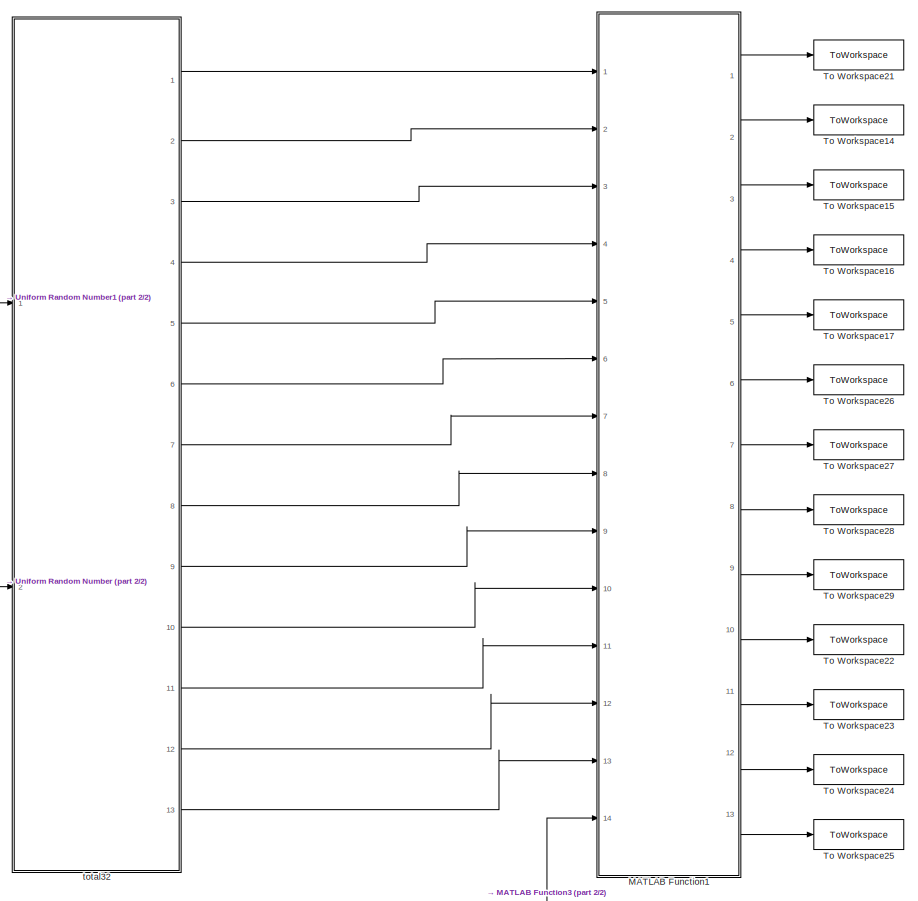
[diagram: root canvas - part 1/2, central region]
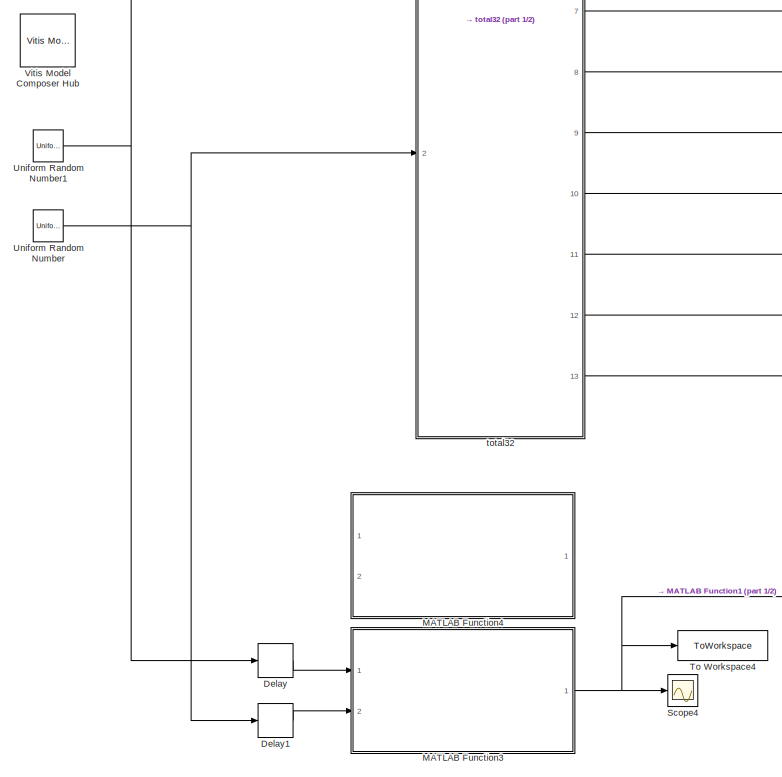
[diagram: root canvas - part 2/2, bottom left region]
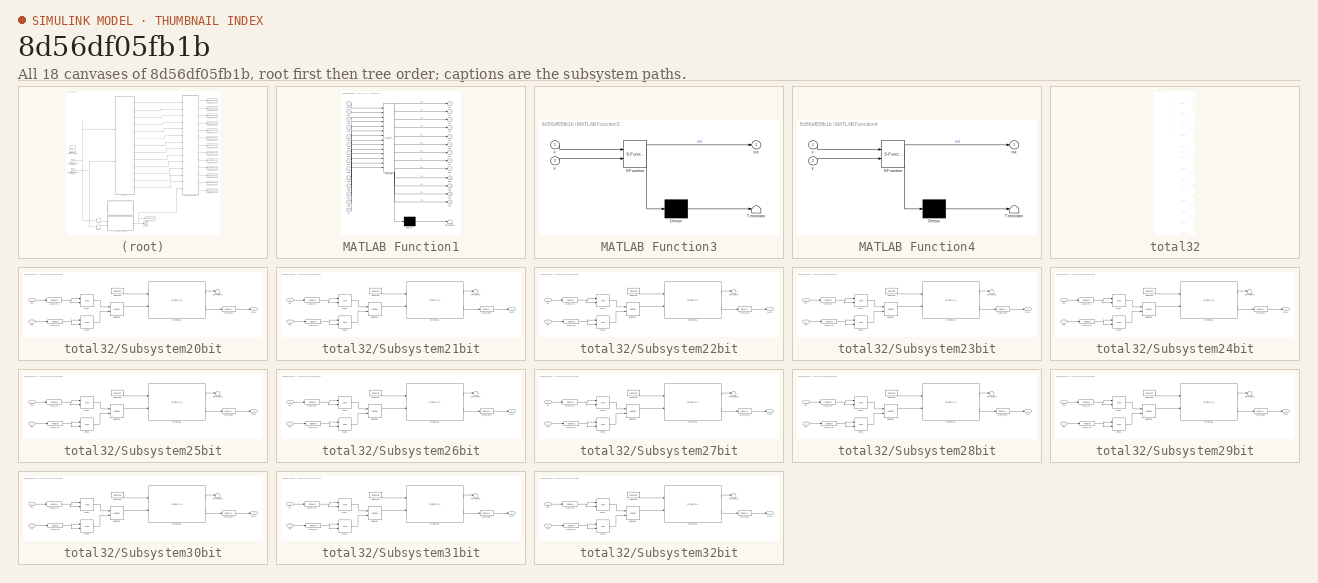
[diagram: thumbnail index - all 18 canvases of the model, root first then tree order]
MODEL slx_8d56df05fb1b
KIND model
CONFIG AbsTol = auto
CONFIG EnableMultiTasking = off
CONFIG FixedStep = auto
CONFIG MaxStep = auto
CONFIG MinStep = auto
CONFIG RelTol = 1e-3
CONFIG SampleTimeConstraint = Unconstrained
CONFIG SolverName = VariableStepAuto
CONFIG StartTime = 0.0
CONFIG StopTime = 100
BLOCK [Delay] Delay
  DelayLength = 1
  InputPortMap = u0
  Ports = [1, 1]
BLOCK [Delay] Delay1
  DelayLength = 1
  InputPortMap = u0
  Ports = [1, 1]
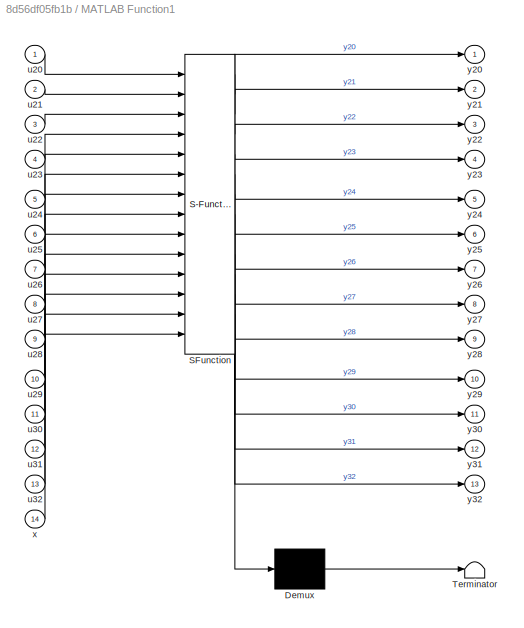
BLOCK [SubSystem] MATLAB Function1
  ErrorFcn = Stateflow.Translate.translate
  PermitHierarchicalResolution = ExplicitOnly
  Ports = [14, 13]
  RequestExecContextInheritance = off
  SFBlockType = MATLAB Function
  TreatAsAtomicUnit = on
BLOCK [Demux] MATLAB Function1/ Demux 
  Outputs = 1
  Ports = [1, 1]
BLOCK [S-Function] MATLAB Function1/ SFunction 
  EnableBusSupport = on
  FunctionName = sf_sfun
  PortCounts = [14 14]
  Ports = [14, 14]
  SFcnIsStateOwnerBlock = off
  SFunctionDeploymentMode = off
  Tag = Stateflow S-Function 1
BLOCK [Terminator] MATLAB Function1/ Terminator 
BLOCK [Inport] MATLAB Function1/u20
BLOCK [Inport] MATLAB Function1/u21
  Port = 2
BLOCK [Inport] MATLAB Function1/u22
  Port = 3
BLOCK [Inport] MATLAB Function1/u23
  Port = 4
BLOCK [Inport] MATLAB Function1/u24
  Port = 5
BLOCK [Inport] MATLAB Function1/u25
  Port = 6
BLOCK [Inport] MATLAB Function1/u26
  Port = 7
BLOCK [Inport] MATLAB Function1/u27
  Port = 8
BLOCK [Inport] MATLAB Function1/u28
  Port = 9
BLOCK [Inport] MATLAB Function1/u29
  Port = 10
BLOCK [Inport] MATLAB Function1/u30
  Port = 11
BLOCK [Inport] MATLAB Function1/u31
  Port = 12
BLOCK [Inport] MATLAB Function1/u32
  Port = 13
BLOCK [Inport] MATLAB Function1/x
  Port = 14
BLOCK [Outport] MATLAB Function1/y20
BLOCK [Outport] MATLAB Function1/y21
  Port = 2
BLOCK [Outport] MATLAB Function1/y22
  Port = 3
BLOCK [Outport] MATLAB Function1/y23
  Port = 4
BLOCK [Outport] MATLAB Function1/y24
  Port = 5
BLOCK [Outport] MATLAB Function1/y25
  Port = 6
BLOCK [Outport] MATLAB Function1/y26
  Port = 7
BLOCK [Outport] MATLAB Function1/y27
  Port = 8
BLOCK [Outport] MATLAB Function1/y28
  Port = 9
BLOCK [Outport] MATLAB Function1/y29
  Port = 10
BLOCK [Outport] MATLAB Function1/y30
  Port = 11
BLOCK [Outport] MATLAB Function1/y31
  Port = 12
BLOCK [Outport] MATLAB Function1/y32
  Port = 13
BLOCK [SubSystem] MATLAB Function3
  ErrorFcn = Stateflow.Translate.translate
  PermitHierarchicalResolution = ExplicitOnly
  Ports = [2, 1]
  RequestExecContextInheritance = off
  SFBlockType = MATLAB Function
  TreatAsAtomicUnit = on
BLOCK [Demux] MATLAB Function3/ Demux 
  Outputs = 1
  Ports = [1, 1]
BLOCK [S-Function] MATLAB Function3/ SFunction 
  EnableBusSupport = on
  FunctionName = sf_sfun
  PortCounts = [2 2]
  Ports = [2, 2]
  SFcnIsStateOwnerBlock = off
  SFunctionDeploymentMode = off
  Tag = Stateflow S-Function 2
BLOCK [Terminator] MATLAB Function3/ Terminator 
BLOCK [Outport] MATLAB Function3/out
BLOCK [Inport] MATLAB Function3/x
BLOCK [Inport] MATLAB Function3/y
  Port = 2
BLOCK [SubSystem] MATLAB Function4
  Commented = on
  ErrorFcn = Stateflow.Translate.translate
  PermitHierarchicalResolution = ExplicitOnly
  Ports = [2, 1]
  RequestExecContextInheritance = off
  SFBlockType = MATLAB Function
  TreatAsAtomicUnit = on
BLOCK [Demux] MATLAB Function4/ Demux 
  Outputs = 1
  Ports = [1, 1]
BLOCK [S-Function] MATLAB Function4/ SFunction 
  EnableBusSupport = on
  FunctionName = sf_sfun
  PortCounts = [2 2]
  Ports = [2, 2]
  SFcnIsStateOwnerBlock = off
  SFunctionDeploymentMode = off
  Tag = Stateflow S-Function 4
BLOCK [Terminator] MATLAB Function4/ Terminator 
BLOCK [Outport] MATLAB Function4/out
BLOCK [Inport] MATLAB Function4/x
BLOCK [Inport] MATLAB Function4/y
  Port = 2
BLOCK [Scope] Scope4
  Floating = off
  NumInputPorts = 1
  Ports = [1]
  ScopeSpecificationString = Simulink.scopes.TimeScopeBlockCfg('CurrentConfiguration', extmgr.ConfigurationSet(extmgr.Configuration('Core','General UI',true),extmgr.Configuration('Core','Source UI',true),extmgr.Configuration('Sources','WiredSimulink',true,'DataLoggingVariableName','ScopeData3'),extmgr.Configuration('Visuals','Time Domain',true,'SerializedDisplays',{struct('MinYLimReal','-0.15485','MaxYLimReal','1.39364','YLab...<+1447ch>
BLOCK [ToWorkspace] To Workspace14
  FixptAsFi = on
  MaxDataPoints = inf
  Ports = [1]
  SampleTime = -1
  SaveFormat = Structure With Time
  VariableName = out21
BLOCK [ToWorkspace] To Workspace15
  FixptAsFi = on
  MaxDataPoints = inf
  Ports = [1]
  SampleTime = -1
  SaveFormat = Structure With Time
  VariableName = out22
BLOCK [ToWorkspace] To Workspace16
  FixptAsFi = on
  MaxDataPoints = inf
  Ports = [1]
  SampleTime = -1
  SaveFormat = Structure With Time
  VariableName = out23
BLOCK [ToWorkspace] To Workspace17
  FixptAsFi = on
  MaxDataPoints = inf
  Ports = [1]
  SampleTime = -1
  SaveFormat = Structure With Time
  VariableName = out24
BLOCK [ToWorkspace] To Workspace21
  FixptAsFi = on
  MaxDataPoints = inf
  Ports = [1]
  SampleTime = -1
  SaveFormat = Structure With Time
  VariableName = out20
BLOCK [ToWorkspace] To Workspace22
  FixptAsFi = on
  MaxDataPoints = inf
  Ports = [1]
  SampleTime = -1
  SaveFormat = Structure With Time
  VariableName = out29
BLOCK [ToWorkspace] To Workspace23
  FixptAsFi = on
  MaxDataPoints = inf
  Ports = [1]
  SampleTime = -1
  SaveFormat = Structure With Time
  VariableName = out30
BLOCK [ToWorkspace] To Workspace24
  FixptAsFi = on
  MaxDataPoints = inf
  Ports = [1]
  SampleTime = -1
  SaveFormat = Structure With Time
  VariableName = out31
BLOCK [ToWorkspace] To Workspace25
  FixptAsFi = on
  MaxDataPoints = inf
  Ports = [1]
  SampleTime = -1
  SaveFormat = Structure With Time
  VariableName = out32
BLOCK [ToWorkspace] To Workspace26
  FixptAsFi = on
  MaxDataPoints = inf
  Ports = [1]
  SampleTime = -1
  SaveFormat = Structure With Time
  VariableName = out25
BLOCK [ToWorkspace] To Workspace27
  FixptAsFi = on
  MaxDataPoints = inf
  Ports = [1]
  SampleTime = -1
  SaveFormat = Structure With Time
  VariableName = out26
BLOCK [ToWorkspace] To Workspace28
  FixptAsFi = on
  MaxDataPoints = inf
  Ports = [1]
  SampleTime = -1
  SaveFormat = Structure With Time
  VariableName = out27
BLOCK [ToWorkspace] To Workspace29
  FixptAsFi = on
  MaxDataPoints = inf
  Ports = [1]
  SampleTime = -1
  SaveFormat = Structure With Time
  VariableName = out28
BLOCK [ToWorkspace] To Workspace4
  FixptAsFi = on
  MaxDataPoints = inf
  Ports = [1]
  SampleTime = -1
  SaveFormat = Structure With Time
  VariableName = outGOLD
BLOCK [UniformRandomNumber] Uniform Random Number
  Maximum = 0.9
  Minimum = -0.9
  SampleTime = 1
BLOCK [UniformRandomNumber] Uniform Random Number1
  Maximum = 0.9
  Minimum = -0.9
  SampleTime = 1
  Seed = 1
BLOCK [Reference] Vitis Model Composer Hub  REF=vmcUtilities/Vitis Model Composer Hub
  Ports = []
  SourceBlock = vmcUtilities/Vitis Model Composer Hub
  SourceType = Implementation
  Tag = genX
  UserDataPersistent = on
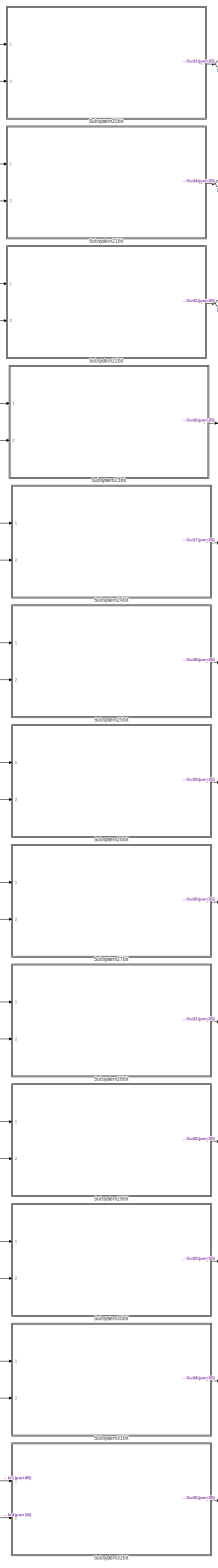
[diagram: total32 - part 1/5, right side, full height]
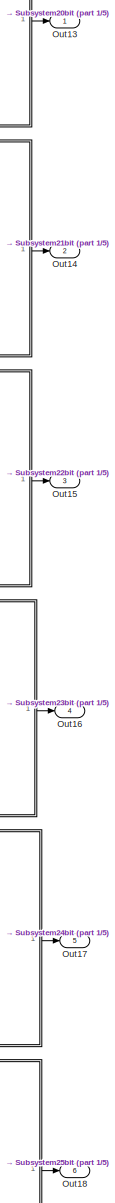
[diagram: total32 - part 2/5, top right region]
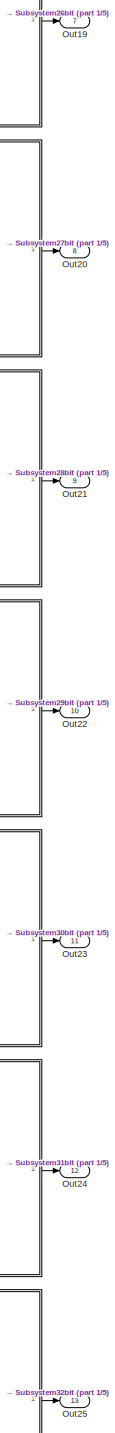
[diagram: total32 - part 3/5, bottom right region]
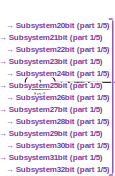
[diagram: total32 - part 4/5, bottom left region]
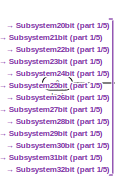
[diagram: total32 - part 5/5, bottom left region]
BLOCK [SubSystem] total32
  Ports = [2, 13]
  RequestExecContextInheritance = off
BLOCK [Inport] total32/In1
BLOCK [Inport] total32/In4
  Port = 2
BLOCK [Outport] total32/Out13
BLOCK [Outport] total32/Out14
  Port = 2
BLOCK [Outport] total32/Out15
  Port = 3
BLOCK [Outport] total32/Out16
  Port = 4
BLOCK [Outport] total32/Out17
  Port = 5
BLOCK [Outport] total32/Out18
  Port = 6
BLOCK [Outport] total32/Out19
  Port = 7
BLOCK [Outport] total32/Out20
  Port = 8
BLOCK [Outport] total32/Out21
  Port = 9
BLOCK [Outport] total32/Out22
  Port = 10
BLOCK [Outport] total32/Out23
  Port = 11
BLOCK [Outport] total32/Out24
  Port = 12
BLOCK [Outport] total32/Out25
  Port = 13
BLOCK [SubSystem] total32/Subsystem20bit
  Ports = [2, 1]
  RequestExecContextInheritance = off
BLOCK [Reference] total32/Subsystem20bit/CORDIC16  REF=hdlDSPIP/CORDIC 6.0 
  Ports = [2, 2]
  SourceBlock = hdlDSPIP/CORDIC 6.0
  SourceType = CORDIC 6.0 Block
BLOCK [Reference] total32/Subsystem20bit/Constant  REF=hdlBasic/Constant
  Ports = [0, 1]
  SourceBlock = hdlBasic/Constant
  SourceType = Constant Block Block
BLOCK [Reference] total32/Subsystem20bit/Gate_In1  REF=hdlBasic/Gateway In
  Ports = [1, 1]
  SourceBlock = hdlBasic/Gateway In
  SourceType = Gateway In Block
BLOCK [Reference] total32/Subsystem20bit/Gate_In2  REF=hdlBasic/Gateway In
  Ports = [1, 1]
  SourceBlock = hdlBasic/Gateway In
  SourceType = Gateway In Block
BLOCK [Reference] total32/Subsystem20bit/Gate_out1  REF=hdlBasic/Gateway Out
  Ports = [1, 1]
  SourceBlock = hdlBasic/Gateway Out
  SourceType = Gateway Out Block
BLOCK [Inport] total32/Subsystem20bit/In1
BLOCK [Inport] total32/Subsystem20bit/In2
  Port = 2
BLOCK [Reference] total32/Subsystem20bit/Mult1  REF=hdlBasic/Mult
  Ports = [2, 1]
  SourceBlock = hdlBasic/Mult
  SourceType = Multiplier Block
BLOCK [Reference] total32/Subsystem20bit/Mult2  REF=hdlBasic/Mult
  Ports = [2, 1]
  SourceBlock = hdlBasic/Mult
  SourceType = Multiplier Block
BLOCK [Outport] total32/Subsystem20bit/Out1
BLOCK [Terminator] total32/Subsystem20bit/Terminator
BLOCK [Reference] total32/Subsystem20bit/addsub1  REF=hdlBasic/AddSub
  Ports = [2, 1]
  SourceBlock = hdlBasic/AddSub
  SourceType = Adder/Subtracter Block
BLOCK [SubSystem] total32/Subsystem21bit
  Ports = [2, 1]
  RequestExecContextInheritance = off
BLOCK [Reference] total32/Subsystem21bit/CORDIC16  REF=hdlDSPIP/CORDIC 6.0 
  Ports = [2, 2]
  SourceBlock = hdlDSPIP/CORDIC 6.0
  SourceType = CORDIC 6.0 Block
BLOCK [Reference] total32/Subsystem21bit/Constant  REF=hdlBasic/Constant
  Ports = [0, 1]
  SourceBlock = hdlBasic/Constant
  SourceType = Constant Block Block
BLOCK [Reference] total32/Subsystem21bit/Gate_In1  REF=hdlBasic/Gateway In
  Ports = [1, 1]
  SourceBlock = hdlBasic/Gateway In
  SourceType = Gateway In Block
BLOCK [Reference] total32/Subsystem21bit/Gate_In2  REF=hdlBasic/Gateway In
  Ports = [1, 1]
  SourceBlock = hdlBasic/Gateway In
  SourceType = Gateway In Block
BLOCK [Reference] total32/Subsystem21bit/Gate_out1  REF=hdlBasic/Gateway Out
  Ports = [1, 1]
  SourceBlock = hdlBasic/Gateway Out
  SourceType = Gateway Out Block
BLOCK [Inport] total32/Subsystem21bit/In1
BLOCK [Inport] total32/Subsystem21bit/In2
  Port = 2
BLOCK [Reference] total32/Subsystem21bit/Mult1  REF=hdlBasic/Mult
  Ports = [2, 1]
  SourceBlock = hdlBasic/Mult
  SourceType = Multiplier Block
BLOCK [Reference] total32/Subsystem21bit/Mult2  REF=hdlBasic/Mult
  Ports = [2, 1]
  SourceBlock = hdlBasic/Mult
  SourceType = Multiplier Block
BLOCK [Outport] total32/Subsystem21bit/Out1
BLOCK [Terminator] total32/Subsystem21bit/Terminator
BLOCK [Reference] total32/Subsystem21bit/addsub1  REF=hdlBasic/AddSub
  Ports = [2, 1]
  SourceBlock = hdlBasic/AddSub
  SourceType = Adder/Subtracter Block
BLOCK [SubSystem] total32/Subsystem22bit
  Ports = [2, 1]
  RequestExecContextInheritance = off
BLOCK [Reference] total32/Subsystem22bit/CORDIC16  REF=hdlDSPIP/CORDIC 6.0 
  Ports = [2, 2]
  SourceBlock = hdlDSPIP/CORDIC 6.0
  SourceType = CORDIC 6.0 Block
BLOCK [Reference] total32/Subsystem22bit/Constant  REF=hdlBasic/Constant
  Ports = [0, 1]
  SourceBlock = hdlBasic/Constant
  SourceType = Constant Block Block
BLOCK [Reference] total32/Subsystem22bit/Gate_In1  REF=hdlBasic/Gateway In
  Ports = [1, 1]
  SourceBlock = hdlBasic/Gateway In
  SourceType = Gateway In Block
BLOCK [Reference] total32/Subsystem22bit/Gate_In2  REF=hdlBasic/Gateway In
  Ports = [1, 1]
  SourceBlock = hdlBasic/Gateway In
  SourceType = Gateway In Block
BLOCK [Reference] total32/Subsystem22bit/Gate_out1  REF=hdlBasic/Gateway Out
  Ports = [1, 1]
  SourceBlock = hdlBasic/Gateway Out
  SourceType = Gateway Out Block
BLOCK [Inport] total32/Subsystem22bit/In1
BLOCK [Inport] total32/Subsystem22bit/In2
  Port = 2
BLOCK [Reference] total32/Subsystem22bit/Mult1  REF=hdlBasic/Mult
  Ports = [2, 1]
  SourceBlock = hdlBasic/Mult
  SourceType = Multiplier Block
BLOCK [Reference] total32/Subsystem22bit/Mult2  REF=hdlBasic/Mult
  Ports = [2, 1]
  SourceBlock = hdlBasic/Mult
  SourceType = Multiplier Block
BLOCK [Outport] total32/Subsystem22bit/Out1
BLOCK [Terminator] total32/Subsystem22bit/Terminator
BLOCK [Reference] total32/Subsystem22bit/addsub1  REF=hdlBasic/AddSub
  Ports = [2, 1]
  SourceBlock = hdlBasic/AddSub
  SourceType = Adder/Subtracter Block
BLOCK [SubSystem] total32/Subsystem23bit
  Ports = [2, 1]
  RequestExecContextInheritance = off
BLOCK [Reference] total32/Subsystem23bit/CORDIC16  REF=hdlDSPIP/CORDIC 6.0 
  Ports = [2, 2]
  SourceBlock = hdlDSPIP/CORDIC 6.0
  SourceType = CORDIC 6.0 Block
BLOCK [Reference] total32/Subsystem23bit/Constant  REF=hdlBasic/Constant
  Ports = [0, 1]
  SourceBlock = hdlBasic/Constant
  SourceType = Constant Block Block
BLOCK [Reference] total32/Subsystem23bit/Gate_In1  REF=hdlBasic/Gateway In
  Ports = [1, 1]
  SourceBlock = hdlBasic/Gateway In
  SourceType = Gateway In Block
BLOCK [Reference] total32/Subsystem23bit/Gate_In2  REF=hdlBasic/Gateway In
  Ports = [1, 1]
  SourceBlock = hdlBasic/Gateway In
  SourceType = Gateway In Block
BLOCK [Reference] total32/Subsystem23bit/Gate_out1  REF=hdlBasic/Gateway Out
  Ports = [1, 1]
  SourceBlock = hdlBasic/Gateway Out
  SourceType = Gateway Out Block
BLOCK [Inport] total32/Subsystem23bit/In1
BLOCK [Inport] total32/Subsystem23bit/In2
  Port = 2
BLOCK [Reference] total32/Subsystem23bit/Mult1  REF=hdlBasic/Mult
  Ports = [2, 1]
  SourceBlock = hdlBasic/Mult
  SourceType = Multiplier Block
BLOCK [Reference] total32/Subsystem23bit/Mult2  REF=hdlBasic/Mult
  Ports = [2, 1]
  SourceBlock = hdlBasic/Mult
  SourceType = Multiplier Block
BLOCK [Outport] total32/Subsystem23bit/Out1
BLOCK [Terminator] total32/Subsystem23bit/Terminator
BLOCK [Reference] total32/Subsystem23bit/addsub1  REF=hdlBasic/AddSub
  Ports = [2, 1]
  SourceBlock = hdlBasic/AddSub
  SourceType = Adder/Subtracter Block
BLOCK [SubSystem] total32/Subsystem24bit
  Ports = [2, 1]
  RequestExecContextInheritance = off
BLOCK [Reference] total32/Subsystem24bit/CORDIC16  REF=hdlDSPIP/CORDIC 6.0 
  Ports = [2, 2]
  SourceBlock = hdlDSPIP/CORDIC 6.0
  SourceType = CORDIC 6.0 Block
BLOCK [Reference] total32/Subsystem24bit/Constant  REF=hdlBasic/Constant
  Ports = [0, 1]
  SourceBlock = hdlBasic/Constant
  SourceType = Constant Block Block
BLOCK [Reference] total32/Subsystem24bit/Gate_In1  REF=hdlBasic/Gateway In
  Ports = [1, 1]
  SourceBlock = hdlBasic/Gateway In
  SourceType = Gateway In Block
BLOCK [Reference] total32/Subsystem24bit/Gate_In2  REF=hdlBasic/Gateway In
  Ports = [1, 1]
  SourceBlock = hdlBasic/Gateway In
  SourceType = Gateway In Block
BLOCK [Reference] total32/Subsystem24bit/Gate_out1  REF=hdlBasic/Gateway Out
  Ports = [1, 1]
  SourceBlock = hdlBasic/Gateway Out
  SourceType = Gateway Out Block
BLOCK [Inport] total32/Subsystem24bit/In1
BLOCK [Inport] total32/Subsystem24bit/In2
  Port = 2
BLOCK [Reference] total32/Subsystem24bit/Mult1  REF=hdlBasic/Mult
  Ports = [2, 1]
  SourceBlock = hdlBasic/Mult
  SourceType = Multiplier Block
BLOCK [Reference] total32/Subsystem24bit/Mult2  REF=hdlBasic/Mult
  Ports = [2, 1]
  SourceBlock = hdlBasic/Mult
  SourceType = Multiplier Block
BLOCK [Outport] total32/Subsystem24bit/Out1
BLOCK [Terminator] total32/Subsystem24bit/Terminator
BLOCK [Reference] total32/Subsystem24bit/addsub1  REF=hdlBasic/AddSub
  Ports = [2, 1]
  SourceBlock = hdlBasic/AddSub
  SourceType = Adder/Subtracter Block
BLOCK [SubSystem] total32/Subsystem25bit
  Ports = [2, 1]
  RequestExecContextInheritance = off
BLOCK [Reference] total32/Subsystem25bit/CORDIC16  REF=hdlDSPIP/CORDIC 6.0 
  Ports = [2, 2]
  SourceBlock = hdlDSPIP/CORDIC 6.0
  SourceType = CORDIC 6.0 Block
BLOCK [Reference] total32/Subsystem25bit/Constant  REF=hdlBasic/Constant
  Ports = [0, 1]
  SourceBlock = hdlBasic/Constant
  SourceType = Constant Block Block
BLOCK [Reference] total32/Subsystem25bit/Gate_In1  REF=hdlBasic/Gateway In
  Ports = [1, 1]
  SourceBlock = hdlBasic/Gateway In
  SourceType = Gateway In Block
BLOCK [Reference] total32/Subsystem25bit/Gate_In2  REF=hdlBasic/Gateway In
  Ports = [1, 1]
  SourceBlock = hdlBasic/Gateway In
  SourceType = Gateway In Block
BLOCK [Reference] total32/Subsystem25bit/Gate_out1  REF=hdlBasic/Gateway Out
  Ports = [1, 1]
  SourceBlock = hdlBasic/Gateway Out
  SourceType = Gateway Out Block
BLOCK [Inport] total32/Subsystem25bit/In1
BLOCK [Inport] total32/Subsystem25bit/In2
  Port = 2
BLOCK [Reference] total32/Subsystem25bit/Mult1  REF=hdlBasic/Mult
  Ports = [2, 1]
  SourceBlock = hdlBasic/Mult
  SourceType = Multiplier Block
BLOCK [Reference] total32/Subsystem25bit/Mult2  REF=hdlBasic/Mult
  Ports = [2, 1]
  SourceBlock = hdlBasic/Mult
  SourceType = Multiplier Block
BLOCK [Outport] total32/Subsystem25bit/Out1
BLOCK [Terminator] total32/Subsystem25bit/Terminator
BLOCK [Reference] total32/Subsystem25bit/addsub1  REF=hdlBasic/AddSub
  Ports = [2, 1]
  SourceBlock = hdlBasic/AddSub
  SourceType = Adder/Subtracter Block
BLOCK [SubSystem] total32/Subsystem26bit
  Ports = [2, 1]
  RequestExecContextInheritance = off
BLOCK [Reference] total32/Subsystem26bit/CORDIC16  REF=hdlDSPIP/CORDIC 6.0 
  Ports = [2, 2]
  SourceBlock = hdlDSPIP/CORDIC 6.0
  SourceType = CORDIC 6.0 Block
BLOCK [Reference] total32/Subsystem26bit/Constant  REF=hdlBasic/Constant
  Ports = [0, 1]
  SourceBlock = hdlBasic/Constant
  SourceType = Constant Block Block
BLOCK [Reference] total32/Subsystem26bit/Gate_In1  REF=hdlBasic/Gateway In
  Ports = [1, 1]
  SourceBlock = hdlBasic/Gateway In
  SourceType = Gateway In Block
BLOCK [Reference] total32/Subsystem26bit/Gate_In2  REF=hdlBasic/Gateway In
  Ports = [1, 1]
  SourceBlock = hdlBasic/Gateway In
  SourceType = Gateway In Block
BLOCK [Reference] total32/Subsystem26bit/Gate_out1  REF=hdlBasic/Gateway Out
  Ports = [1, 1]
  SourceBlock = hdlBasic/Gateway Out
  SourceType = Gateway Out Block
BLOCK [Inport] total32/Subsystem26bit/In1
BLOCK [Inport] total32/Subsystem26bit/In2
  Port = 2
BLOCK [Reference] total32/Subsystem26bit/Mult1  REF=hdlBasic/Mult
  Ports = [2, 1]
  SourceBlock = hdlBasic/Mult
  SourceType = Multiplier Block
BLOCK [Reference] total32/Subsystem26bit/Mult2  REF=hdlBasic/Mult
  Ports = [2, 1]
  SourceBlock = hdlBasic/Mult
  SourceType = Multiplier Block
BLOCK [Outport] total32/Subsystem26bit/Out1
BLOCK [Terminator] total32/Subsystem26bit/Terminator
BLOCK [Reference] total32/Subsystem26bit/addsub1  REF=hdlBasic/AddSub
  Ports = [2, 1]
  SourceBlock = hdlBasic/AddSub
  SourceType = Adder/Subtracter Block
BLOCK [SubSystem] total32/Subsystem27bit
  Ports = [2, 1]
  RequestExecContextInheritance = off
BLOCK [Reference] total32/Subsystem27bit/CORDIC16  REF=hdlDSPIP/CORDIC 6.0 
  Ports = [2, 2]
  SourceBlock = hdlDSPIP/CORDIC 6.0
  SourceType = CORDIC 6.0 Block
BLOCK [Reference] total32/Subsystem27bit/Constant  REF=hdlBasic/Constant
  Ports = [0, 1]
  SourceBlock = hdlBasic/Constant
  SourceType = Constant Block Block
BLOCK [Reference] total32/Subsystem27bit/Gate_In1  REF=hdlBasic/Gateway In
  Ports = [1, 1]
  SourceBlock = hdlBasic/Gateway In
  SourceType = Gateway In Block
BLOCK [Reference] total32/Subsystem27bit/Gate_In2  REF=hdlBasic/Gateway In
  Ports = [1, 1]
  SourceBlock = hdlBasic/Gateway In
  SourceType = Gateway In Block
BLOCK [Reference] total32/Subsystem27bit/Gate_out1  REF=hdlBasic/Gateway Out
  Ports = [1, 1]
  SourceBlock = hdlBasic/Gateway Out
  SourceType = Gateway Out Block
BLOCK [Inport] total32/Subsystem27bit/In1
BLOCK [Inport] total32/Subsystem27bit/In2
  Port = 2
BLOCK [Reference] total32/Subsystem27bit/Mult1  REF=hdlBasic/Mult
  Ports = [2, 1]
  SourceBlock = hdlBasic/Mult
  SourceType = Multiplier Block
BLOCK [Reference] total32/Subsystem27bit/Mult2  REF=hdlBasic/Mult
  Ports = [2, 1]
  SourceBlock = hdlBasic/Mult
  SourceType = Multiplier Block
BLOCK [Outport] total32/Subsystem27bit/Out1
BLOCK [Terminator] total32/Subsystem27bit/Terminator
BLOCK [Reference] total32/Subsystem27bit/addsub1  REF=hdlBasic/AddSub
  Ports = [2, 1]
  SourceBlock = hdlBasic/AddSub
  SourceType = Adder/Subtracter Block
BLOCK [SubSystem] total32/Subsystem28bit
  Ports = [2, 1]
  RequestExecContextInheritance = off
BLOCK [Reference] total32/Subsystem28bit/CORDIC16  REF=hdlDSPIP/CORDIC 6.0 
  Ports = [2, 2]
  SourceBlock = hdlDSPIP/CORDIC 6.0
  SourceType = CORDIC 6.0 Block
BLOCK [Reference] total32/Subsystem28bit/Constant  REF=hdlBasic/Constant
  Ports = [0, 1]
  SourceBlock = hdlBasic/Constant
  SourceType = Constant Block Block
BLOCK [Reference] total32/Subsystem28bit/Gate_In1  REF=hdlBasic/Gateway In
  Ports = [1, 1]
  SourceBlock = hdlBasic/Gateway In
  SourceType = Gateway In Block
BLOCK [Reference] total32/Subsystem28bit/Gate_In2  REF=hdlBasic/Gateway In
  Ports = [1, 1]
  SourceBlock = hdlBasic/Gateway In
  SourceType = Gateway In Block
BLOCK [Reference] total32/Subsystem28bit/Gate_out1  REF=hdlBasic/Gateway Out
  Ports = [1, 1]
  SourceBlock = hdlBasic/Gateway Out
  SourceType = Gateway Out Block
BLOCK [Inport] total32/Subsystem28bit/In1
BLOCK [Inport] total32/Subsystem28bit/In2
  Port = 2
BLOCK [Reference] total32/Subsystem28bit/Mult1  REF=hdlBasic/Mult
  Ports = [2, 1]
  SourceBlock = hdlBasic/Mult
  SourceType = Multiplier Block
BLOCK [Reference] total32/Subsystem28bit/Mult2  REF=hdlBasic/Mult
  Ports = [2, 1]
  SourceBlock = hdlBasic/Mult
  SourceType = Multiplier Block
BLOCK [Outport] total32/Subsystem28bit/Out1
BLOCK [Terminator] total32/Subsystem28bit/Terminator
BLOCK [Reference] total32/Subsystem28bit/addsub1  REF=hdlBasic/AddSub
  Ports = [2, 1]
  SourceBlock = hdlBasic/AddSub
  SourceType = Adder/Subtracter Block
BLOCK [SubSystem] total32/Subsystem29bit
  Ports = [2, 1]
  RequestExecContextInheritance = off
BLOCK [Reference] total32/Subsystem29bit/CORDIC16  REF=hdlDSPIP/CORDIC 6.0 
  Ports = [2, 2]
  SourceBlock = hdlDSPIP/CORDIC 6.0
  SourceType = CORDIC 6.0 Block
BLOCK [Reference] total32/Subsystem29bit/Constant  REF=hdlBasic/Constant
  Ports = [0, 1]
  SourceBlock = hdlBasic/Constant
  SourceType = Constant Block Block
BLOCK [Reference] total32/Subsystem29bit/Gate_In1  REF=hdlBasic/Gateway In
  Ports = [1, 1]
  SourceBlock = hdlBasic/Gateway In
  SourceType = Gateway In Block
BLOCK [Reference] total32/Subsystem29bit/Gate_In2  REF=hdlBasic/Gateway In
  Ports = [1, 1]
  SourceBlock = hdlBasic/Gateway In
  SourceType = Gateway In Block
BLOCK [Reference] total32/Subsystem29bit/Gate_out1  REF=hdlBasic/Gateway Out
  Ports = [1, 1]
  SourceBlock = hdlBasic/Gateway Out
  SourceType = Gateway Out Block
BLOCK [Inport] total32/Subsystem29bit/In1
BLOCK [Inport] total32/Subsystem29bit/In2
  Port = 2
BLOCK [Reference] total32/Subsystem29bit/Mult1  REF=hdlBasic/Mult
  Ports = [2, 1]
  SourceBlock = hdlBasic/Mult
  SourceType = Multiplier Block
BLOCK [Reference] total32/Subsystem29bit/Mult2  REF=hdlBasic/Mult
  Ports = [2, 1]
  SourceBlock = hdlBasic/Mult
  SourceType = Multiplier Block
BLOCK [Outport] total32/Subsystem29bit/Out1
BLOCK [Terminator] total32/Subsystem29bit/Terminator
BLOCK [Reference] total32/Subsystem29bit/addsub1  REF=hdlBasic/AddSub
  Ports = [2, 1]
  SourceBlock = hdlBasic/AddSub
  SourceType = Adder/Subtracter Block
BLOCK [SubSystem] total32/Subsystem30bit
  Ports = [2, 1]
  RequestExecContextInheritance = off
BLOCK [Reference] total32/Subsystem30bit/CORDIC16  REF=hdlDSPIP/CORDIC 6.0 
  Ports = [2, 2]
  SourceBlock = hdlDSPIP/CORDIC 6.0
  SourceType = CORDIC 6.0 Block
BLOCK [Reference] total32/Subsystem30bit/Constant  REF=hdlBasic/Constant
  Ports = [0, 1]
  SourceBlock = hdlBasic/Constant
  SourceType = Constant Block Block
BLOCK [Reference] total32/Subsystem30bit/Gate_In1  REF=hdlBasic/Gateway In
  Ports = [1, 1]
  SourceBlock = hdlBasic/Gateway In
  SourceType = Gateway In Block
BLOCK [Reference] total32/Subsystem30bit/Gate_In2  REF=hdlBasic/Gateway In
  Ports = [1, 1]
  SourceBlock = hdlBasic/Gateway In
  SourceType = Gateway In Block
BLOCK [Reference] total32/Subsystem30bit/Gate_out1  REF=hdlBasic/Gateway Out
  Ports = [1, 1]
  SourceBlock = hdlBasic/Gateway Out
  SourceType = Gateway Out Block
BLOCK [Inport] total32/Subsystem30bit/In1
BLOCK [Inport] total32/Subsystem30bit/In2
  Port = 2
BLOCK [Reference] total32/Subsystem30bit/Mult1  REF=hdlBasic/Mult
  Ports = [2, 1]
  SourceBlock = hdlBasic/Mult
  SourceType = Multiplier Block
BLOCK [Reference] total32/Subsystem30bit/Mult2  REF=hdlBasic/Mult
  Ports = [2, 1]
  SourceBlock = hdlBasic/Mult
  SourceType = Multiplier Block
BLOCK [Outport] total32/Subsystem30bit/Out1
BLOCK [Terminator] total32/Subsystem30bit/Terminator
BLOCK [Reference] total32/Subsystem30bit/addsub1  REF=hdlBasic/AddSub
  Ports = [2, 1]
  SourceBlock = hdlBasic/AddSub
  SourceType = Adder/Subtracter Block
BLOCK [SubSystem] total32/Subsystem31bit
  Ports = [2, 1]
  RequestExecContextInheritance = off
BLOCK [Reference] total32/Subsystem31bit/CORDIC16  REF=hdlDSPIP/CORDIC 6.0 
  Ports = [2, 2]
  SourceBlock = hdlDSPIP/CORDIC 6.0
  SourceType = CORDIC 6.0 Block
BLOCK [Reference] total32/Subsystem31bit/Constant  REF=hdlBasic/Constant
  Ports = [0, 1]
  SourceBlock = hdlBasic/Constant
  SourceType = Constant Block Block
BLOCK [Reference] total32/Subsystem31bit/Gate_In1  REF=hdlBasic/Gateway In
  Ports = [1, 1]
  SourceBlock = hdlBasic/Gateway In
  SourceType = Gateway In Block
BLOCK [Reference] total32/Subsystem31bit/Gate_In2  REF=hdlBasic/Gateway In
  Ports = [1, 1]
  SourceBlock = hdlBasic/Gateway In
  SourceType = Gateway In Block
BLOCK [Reference] total32/Subsystem31bit/Gate_out1  REF=hdlBasic/Gateway Out
  Ports = [1, 1]
  SourceBlock = hdlBasic/Gateway Out
  SourceType = Gateway Out Block
BLOCK [Inport] total32/Subsystem31bit/In1
BLOCK [Inport] total32/Subsystem31bit/In2
  Port = 2
BLOCK [Reference] total32/Subsystem31bit/Mult1  REF=hdlBasic/Mult
  Ports = [2, 1]
  SourceBlock = hdlBasic/Mult
  SourceType = Multiplier Block
BLOCK [Reference] total32/Subsystem31bit/Mult2  REF=hdlBasic/Mult
  Ports = [2, 1]
  SourceBlock = hdlBasic/Mult
  SourceType = Multiplier Block
BLOCK [Outport] total32/Subsystem31bit/Out1
BLOCK [Terminator] total32/Subsystem31bit/Terminator
BLOCK [Reference] total32/Subsystem31bit/addsub1  REF=hdlBasic/AddSub
  Ports = [2, 1]
  SourceBlock = hdlBasic/AddSub
  SourceType = Adder/Subtracter Block
BLOCK [SubSystem] total32/Subsystem32bit
  Ports = [2, 1]
  RequestExecContextInheritance = off
BLOCK [Reference] total32/Subsystem32bit/CORDIC16  REF=hdlDSPIP/CORDIC 6.0 
  Ports = [2, 2]
  SourceBlock = hdlDSPIP/CORDIC 6.0
  SourceType = CORDIC 6.0 Block
BLOCK [Reference] total32/Subsystem32bit/Constant  REF=hdlBasic/Constant
  Ports = [0, 1]
  SourceBlock = hdlBasic/Constant
  SourceType = Constant Block Block
BLOCK [Reference] total32/Subsystem32bit/Gate_In1  REF=hdlBasic/Gateway In
  Ports = [1, 1]
  SourceBlock = hdlBasic/Gateway In
  SourceType = Gateway In Block
BLOCK [Reference] total32/Subsystem32bit/Gate_In2  REF=hdlBasic/Gateway In
  Ports = [1, 1]
  SourceBlock = hdlBasic/Gateway In
  SourceType = Gateway In Block
BLOCK [Reference] total32/Subsystem32bit/Gate_out1  REF=hdlBasic/Gateway Out
  Ports = [1, 1]
  SourceBlock = hdlBasic/Gateway Out
  SourceType = Gateway Out Block
BLOCK [Inport] total32/Subsystem32bit/In1
BLOCK [Inport] total32/Subsystem32bit/In2
  Port = 2
BLOCK [Reference] total32/Subsystem32bit/Mult1  REF=hdlBasic/Mult
  Ports = [2, 1]
  SourceBlock = hdlBasic/Mult
  SourceType = Multiplier Block
BLOCK [Reference] total32/Subsystem32bit/Mult2  REF=hdlBasic/Mult
  Ports = [2, 1]
  SourceBlock = hdlBasic/Mult
  SourceType = Multiplier Block
BLOCK [Outport] total32/Subsystem32bit/Out1
BLOCK [Terminator] total32/Subsystem32bit/Terminator
BLOCK [Reference] total32/Subsystem32bit/addsub1  REF=hdlBasic/AddSub
  Ports = [2, 1]
  SourceBlock = hdlBasic/AddSub
  SourceType = Adder/Subtracter Block
LINE Delay1:1 -> MATLAB Function3:2
LINE Delay:1 -> MATLAB Function3:1
LINE MATLAB Function1:1 -> To Workspace21:1
LINE MATLAB Function1:10 -> To Workspace22:1
LINE MATLAB Function1:11 -> To Workspace23:1
LINE MATLAB Function1:12 -> To Workspace24:1
LINE MATLAB Function1:13 -> To Workspace25:1
LINE MATLAB Function1:2 -> To Workspace14:1
LINE MATLAB Function1:3 -> To Workspace15:1
LINE MATLAB Function1:4 -> To Workspace16:1
LINE MATLAB Function1:5 -> To Workspace17:1
LINE MATLAB Function1:6 -> To Workspace26:1
LINE MATLAB Function1:7 -> To Workspace27:1
LINE MATLAB Function1:8 -> To Workspace28:1
LINE MATLAB Function1:9 -> To Workspace29:1
NET MATLAB Function3:1 -> MATLAB Function1:14, Scope4:1, To Workspace4:1
NET Uniform Random Number1:1 -> Delay:1, total32:1
NET Uniform Random Number:1 -> Delay1:1, total32:2
NET total32/In1:1 -> total32/Subsystem20bit:1, total32/Subsystem21bit:1, total32/Subsystem22bit:1, total32/Subsystem23bit:1, total32/Subsystem24bit:1, total32/Subsystem25bit:1, total32/Subsystem26bit:1, total32/Subsystem27bit:1, total32/Subsystem28bit:1, total32/Subsystem29bit:1, total32/Subsystem30bit:1, total32/Subsystem31bit:1, total32/Subsystem32bit:1
NET total32/In4:1 -> total32/Subsystem20bit:2, total32/Subsystem21bit:2, total32/Subsystem22bit:2, total32/Subsystem23bit:2, total32/Subsystem24bit:2, total32/Subsystem25bit:2, total32/Subsystem26bit:2, total32/Subsystem27bit:2, total32/Subsystem28bit:2, total32/Subsystem29bit:2, total32/Subsystem30bit:2, total32/Subsystem31bit:2, total32/Subsystem32bit:2
LINE total32/Subsystem20bit/CORDIC16:1 -> total32/Subsystem20bit/Terminator:1
LINE total32/Subsystem20bit/CORDIC16:2 -> total32/Subsystem20bit/Gate_out1:1
LINE total32/Subsystem20bit/Constant:1 -> total32/Subsystem20bit/CORDIC16:1
NET total32/Subsystem20bit/Gate_In1:1 -> total32/Subsystem20bit/Mult1:1, total32/Subsystem20bit/Mult1:2
NET total32/Subsystem20bit/Gate_In2:1 -> total32/Subsystem20bit/Mult2:1, total32/Subsystem20bit/Mult2:2
LINE total32/Subsystem20bit/Gate_out1:1 -> total32/Subsystem20bit/Out1:1
LINE total32/Subsystem20bit/In1:1 -> total32/Subsystem20bit/Gate_In1:1
LINE total32/Subsystem20bit/In2:1 -> total32/Subsystem20bit/Gate_In2:1
LINE total32/Subsystem20bit/Mult1:1 -> total32/Subsystem20bit/addsub1:1
LINE total32/Subsystem20bit/Mult2:1 -> total32/Subsystem20bit/addsub1:2
LINE total32/Subsystem20bit/addsub1:1 -> total32/Subsystem20bit/CORDIC16:2
LINE total32/Subsystem20bit:1 -> total32/Out13:1
LINE total32/Subsystem21bit/CORDIC16:1 -> total32/Subsystem21bit/Terminator:1
LINE total32/Subsystem21bit/CORDIC16:2 -> total32/Subsystem21bit/Gate_out1:1
LINE total32/Subsystem21bit/Constant:1 -> total32/Subsystem21bit/CORDIC16:1
NET total32/Subsystem21bit/Gate_In1:1 -> total32/Subsystem21bit/Mult1:1, total32/Subsystem21bit/Mult1:2
NET total32/Subsystem21bit/Gate_In2:1 -> total32/Subsystem21bit/Mult2:1, total32/Subsystem21bit/Mult2:2
LINE total32/Subsystem21bit/Gate_out1:1 -> total32/Subsystem21bit/Out1:1
LINE total32/Subsystem21bit/In1:1 -> total32/Subsystem21bit/Gate_In1:1
LINE total32/Subsystem21bit/In2:1 -> total32/Subsystem21bit/Gate_In2:1
LINE total32/Subsystem21bit/Mult1:1 -> total32/Subsystem21bit/addsub1:1
LINE total32/Subsystem21bit/Mult2:1 -> total32/Subsystem21bit/addsub1:2
LINE total32/Subsystem21bit/addsub1:1 -> total32/Subsystem21bit/CORDIC16:2
LINE total32/Subsystem21bit:1 -> total32/Out14:1
LINE total32/Subsystem22bit/CORDIC16:1 -> total32/Subsystem22bit/Terminator:1
LINE total32/Subsystem22bit/CORDIC16:2 -> total32/Subsystem22bit/Gate_out1:1
LINE total32/Subsystem22bit/Constant:1 -> total32/Subsystem22bit/CORDIC16:1
NET total32/Subsystem22bit/Gate_In1:1 -> total32/Subsystem22bit/Mult1:1, total32/Subsystem22bit/Mult1:2
NET total32/Subsystem22bit/Gate_In2:1 -> total32/Subsystem22bit/Mult2:1, total32/Subsystem22bit/Mult2:2
LINE total32/Subsystem22bit/Gate_out1:1 -> total32/Subsystem22bit/Out1:1
LINE total32/Subsystem22bit/In1:1 -> total32/Subsystem22bit/Gate_In1:1
LINE total32/Subsystem22bit/In2:1 -> total32/Subsystem22bit/Gate_In2:1
LINE total32/Subsystem22bit/Mult1:1 -> total32/Subsystem22bit/addsub1:1
LINE total32/Subsystem22bit/Mult2:1 -> total32/Subsystem22bit/addsub1:2
LINE total32/Subsystem22bit/addsub1:1 -> total32/Subsystem22bit/CORDIC16:2
LINE total32/Subsystem22bit:1 -> total32/Out15:1
LINE total32/Subsystem23bit/CORDIC16:1 -> total32/Subsystem23bit/Terminator:1
LINE total32/Subsystem23bit/CORDIC16:2 -> total32/Subsystem23bit/Gate_out1:1
LINE total32/Subsystem23bit/Constant:1 -> total32/Subsystem23bit/CORDIC16:1
NET total32/Subsystem23bit/Gate_In1:1 -> total32/Subsystem23bit/Mult1:1, total32/Subsystem23bit/Mult1:2
NET total32/Subsystem23bit/Gate_In2:1 -> total32/Subsystem23bit/Mult2:1, total32/Subsystem23bit/Mult2:2
LINE total32/Subsystem23bit/Gate_out1:1 -> total32/Subsystem23bit/Out1:1
LINE total32/Subsystem23bit/In1:1 -> total32/Subsystem23bit/Gate_In1:1
LINE total32/Subsystem23bit/In2:1 -> total32/Subsystem23bit/Gate_In2:1
LINE total32/Subsystem23bit/Mult1:1 -> total32/Subsystem23bit/addsub1:1
LINE total32/Subsystem23bit/Mult2:1 -> total32/Subsystem23bit/addsub1:2
LINE total32/Subsystem23bit/addsub1:1 -> total32/Subsystem23bit/CORDIC16:2
LINE total32/Subsystem23bit:1 -> total32/Out16:1
LINE total32/Subsystem24bit/CORDIC16:1 -> total32/Subsystem24bit/Terminator:1
LINE total32/Subsystem24bit/CORDIC16:2 -> total32/Subsystem24bit/Gate_out1:1
LINE total32/Subsystem24bit/Constant:1 -> total32/Subsystem24bit/CORDIC16:1
NET total32/Subsystem24bit/Gate_In1:1 -> total32/Subsystem24bit/Mult1:1, total32/Subsystem24bit/Mult1:2
NET total32/Subsystem24bit/Gate_In2:1 -> total32/Subsystem24bit/Mult2:1, total32/Subsystem24bit/Mult2:2
LINE total32/Subsystem24bit/Gate_out1:1 -> total32/Subsystem24bit/Out1:1
LINE total32/Subsystem24bit/In1:1 -> total32/Subsystem24bit/Gate_In1:1
LINE total32/Subsystem24bit/In2:1 -> total32/Subsystem24bit/Gate_In2:1
LINE total32/Subsystem24bit/Mult1:1 -> total32/Subsystem24bit/addsub1:1
LINE total32/Subsystem24bit/Mult2:1 -> total32/Subsystem24bit/addsub1:2
LINE total32/Subsystem24bit/addsub1:1 -> total32/Subsystem24bit/CORDIC16:2
LINE total32/Subsystem24bit:1 -> total32/Out17:1
LINE total32/Subsystem25bit/CORDIC16:1 -> total32/Subsystem25bit/Terminator:1
LINE total32/Subsystem25bit/CORDIC16:2 -> total32/Subsystem25bit/Gate_out1:1
LINE total32/Subsystem25bit/Constant:1 -> total32/Subsystem25bit/CORDIC16:1
NET total32/Subsystem25bit/Gate_In1:1 -> total32/Subsystem25bit/Mult1:1, total32/Subsystem25bit/Mult1:2
NET total32/Subsystem25bit/Gate_In2:1 -> total32/Subsystem25bit/Mult2:1, total32/Subsystem25bit/Mult2:2
LINE total32/Subsystem25bit/Gate_out1:1 -> total32/Subsystem25bit/Out1:1
LINE total32/Subsystem25bit/In1:1 -> total32/Subsystem25bit/Gate_In1:1
LINE total32/Subsystem25bit/In2:1 -> total32/Subsystem25bit/Gate_In2:1
LINE total32/Subsystem25bit/Mult1:1 -> total32/Subsystem25bit/addsub1:1
LINE total32/Subsystem25bit/Mult2:1 -> total32/Subsystem25bit/addsub1:2
LINE total32/Subsystem25bit/addsub1:1 -> total32/Subsystem25bit/CORDIC16:2
LINE total32/Subsystem25bit:1 -> total32/Out18:1
LINE total32/Subsystem26bit/CORDIC16:1 -> total32/Subsystem26bit/Terminator:1
LINE total32/Subsystem26bit/CORDIC16:2 -> total32/Subsystem26bit/Gate_out1:1
LINE total32/Subsystem26bit/Constant:1 -> total32/Subsystem26bit/CORDIC16:1
NET total32/Subsystem26bit/Gate_In1:1 -> total32/Subsystem26bit/Mult1:1, total32/Subsystem26bit/Mult1:2
NET total32/Subsystem26bit/Gate_In2:1 -> total32/Subsystem26bit/Mult2:1, total32/Subsystem26bit/Mult2:2
LINE total32/Subsystem26bit/Gate_out1:1 -> total32/Subsystem26bit/Out1:1
LINE total32/Subsystem26bit/In1:1 -> total32/Subsystem26bit/Gate_In1:1
LINE total32/Subsystem26bit/In2:1 -> total32/Subsystem26bit/Gate_In2:1
LINE total32/Subsystem26bit/Mult1:1 -> total32/Subsystem26bit/addsub1:1
LINE total32/Subsystem26bit/Mult2:1 -> total32/Subsystem26bit/addsub1:2
LINE total32/Subsystem26bit/addsub1:1 -> total32/Subsystem26bit/CORDIC16:2
LINE total32/Subsystem26bit:1 -> total32/Out19:1
LINE total32/Subsystem27bit/CORDIC16:1 -> total32/Subsystem27bit/Terminator:1
LINE total32/Subsystem27bit/CORDIC16:2 -> total32/Subsystem27bit/Gate_out1:1
LINE total32/Subsystem27bit/Constant:1 -> total32/Subsystem27bit/CORDIC16:1
NET total32/Subsystem27bit/Gate_In1:1 -> total32/Subsystem27bit/Mult1:1, total32/Subsystem27bit/Mult1:2
NET total32/Subsystem27bit/Gate_In2:1 -> total32/Subsystem27bit/Mult2:1, total32/Subsystem27bit/Mult2:2
LINE total32/Subsystem27bit/Gate_out1:1 -> total32/Subsystem27bit/Out1:1
LINE total32/Subsystem27bit/In1:1 -> total32/Subsystem27bit/Gate_In1:1
LINE total32/Subsystem27bit/In2:1 -> total32/Subsystem27bit/Gate_In2:1
LINE total32/Subsystem27bit/Mult1:1 -> total32/Subsystem27bit/addsub1:1
LINE total32/Subsystem27bit/Mult2:1 -> total32/Subsystem27bit/addsub1:2
LINE total32/Subsystem27bit/addsub1:1 -> total32/Subsystem27bit/CORDIC16:2
LINE total32/Subsystem27bit:1 -> total32/Out20:1
LINE total32/Subsystem28bit/CORDIC16:1 -> total32/Subsystem28bit/Terminator:1
LINE total32/Subsystem28bit/CORDIC16:2 -> total32/Subsystem28bit/Gate_out1:1
LINE total32/Subsystem28bit/Constant:1 -> total32/Subsystem28bit/CORDIC16:1
NET total32/Subsystem28bit/Gate_In1:1 -> total32/Subsystem28bit/Mult1:1, total32/Subsystem28bit/Mult1:2
NET total32/Subsystem28bit/Gate_In2:1 -> total32/Subsystem28bit/Mult2:1, total32/Subsystem28bit/Mult2:2
LINE total32/Subsystem28bit/Gate_out1:1 -> total32/Subsystem28bit/Out1:1
LINE total32/Subsystem28bit/In1:1 -> total32/Subsystem28bit/Gate_In1:1
LINE total32/Subsystem28bit/In2:1 -> total32/Subsystem28bit/Gate_In2:1
LINE total32/Subsystem28bit/Mult1:1 -> total32/Subsystem28bit/addsub1:1
LINE total32/Subsystem28bit/Mult2:1 -> total32/Subsystem28bit/addsub1:2
LINE total32/Subsystem28bit/addsub1:1 -> total32/Subsystem28bit/CORDIC16:2
LINE total32/Subsystem28bit:1 -> total32/Out21:1
LINE total32/Subsystem29bit/CORDIC16:1 -> total32/Subsystem29bit/Terminator:1
LINE total32/Subsystem29bit/CORDIC16:2 -> total32/Subsystem29bit/Gate_out1:1
LINE total32/Subsystem29bit/Constant:1 -> total32/Subsystem29bit/CORDIC16:1
NET total32/Subsystem29bit/Gate_In1:1 -> total32/Subsystem29bit/Mult1:1, total32/Subsystem29bit/Mult1:2
NET total32/Subsystem29bit/Gate_In2:1 -> total32/Subsystem29bit/Mult2:1, total32/Subsystem29bit/Mult2:2
LINE total32/Subsystem29bit/Gate_out1:1 -> total32/Subsystem29bit/Out1:1
LINE total32/Subsystem29bit/In1:1 -> total32/Subsystem29bit/Gate_In1:1
LINE total32/Subsystem29bit/In2:1 -> total32/Subsystem29bit/Gate_In2:1
LINE total32/Subsystem29bit/Mult1:1 -> total32/Subsystem29bit/addsub1:1
LINE total32/Subsystem29bit/Mult2:1 -> total32/Subsystem29bit/addsub1:2
LINE total32/Subsystem29bit/addsub1:1 -> total32/Subsystem29bit/CORDIC16:2
LINE total32/Subsystem29bit:1 -> total32/Out22:1
LINE total32/Subsystem30bit/CORDIC16:1 -> total32/Subsystem30bit/Terminator:1
LINE total32/Subsystem30bit/CORDIC16:2 -> total32/Subsystem30bit/Gate_out1:1
LINE total32/Subsystem30bit/Constant:1 -> total32/Subsystem30bit/CORDIC16:1
NET total32/Subsystem30bit/Gate_In1:1 -> total32/Subsystem30bit/Mult1:1, total32/Subsystem30bit/Mult1:2
NET total32/Subsystem30bit/Gate_In2:1 -> total32/Subsystem30bit/Mult2:1, total32/Subsystem30bit/Mult2:2
LINE total32/Subsystem30bit/Gate_out1:1 -> total32/Subsystem30bit/Out1:1
LINE total32/Subsystem30bit/In1:1 -> total32/Subsystem30bit/Gate_In1:1
LINE total32/Subsystem30bit/In2:1 -> total32/Subsystem30bit/Gate_In2:1
LINE total32/Subsystem30bit/Mult1:1 -> total32/Subsystem30bit/addsub1:1
LINE total32/Subsystem30bit/Mult2:1 -> total32/Subsystem30bit/addsub1:2
LINE total32/Subsystem30bit/addsub1:1 -> total32/Subsystem30bit/CORDIC16:2
LINE total32/Subsystem30bit:1 -> total32/Out23:1
LINE total32/Subsystem31bit/CORDIC16:1 -> total32/Subsystem31bit/Terminator:1
LINE total32/Subsystem31bit/CORDIC16:2 -> total32/Subsystem31bit/Gate_out1:1
LINE total32/Subsystem31bit/Constant:1 -> total32/Subsystem31bit/CORDIC16:1
NET total32/Subsystem31bit/Gate_In1:1 -> total32/Subsystem31bit/Mult1:1, total32/Subsystem31bit/Mult1:2
NET total32/Subsystem31bit/Gate_In2:1 -> total32/Subsystem31bit/Mult2:1, total32/Subsystem31bit/Mult2:2
LINE total32/Subsystem31bit/Gate_out1:1 -> total32/Subsystem31bit/Out1:1
LINE total32/Subsystem31bit/In1:1 -> total32/Subsystem31bit/Gate_In1:1
LINE total32/Subsystem31bit/In2:1 -> total32/Subsystem31bit/Gate_In2:1
LINE total32/Subsystem31bit/Mult1:1 -> total32/Subsystem31bit/addsub1:1
LINE total32/Subsystem31bit/Mult2:1 -> total32/Subsystem31bit/addsub1:2
LINE total32/Subsystem31bit/addsub1:1 -> total32/Subsystem31bit/CORDIC16:2
LINE total32/Subsystem31bit:1 -> total32/Out24:1
LINE total32/Subsystem32bit/CORDIC16:1 -> total32/Subsystem32bit/Terminator:1
LINE total32/Subsystem32bit/CORDIC16:2 -> total32/Subsystem32bit/Gate_out1:1
LINE total32/Subsystem32bit/Constant:1 -> total32/Subsystem32bit/CORDIC16:1
NET total32/Subsystem32bit/Gate_In1:1 -> total32/Subsystem32bit/Mult1:1, total32/Subsystem32bit/Mult1:2
NET total32/Subsystem32bit/Gate_In2:1 -> total32/Subsystem32bit/Mult2:1, total32/Subsystem32bit/Mult2:2
LINE total32/Subsystem32bit/Gate_out1:1 -> total32/Subsystem32bit/Out1:1
LINE total32/Subsystem32bit/In1:1 -> total32/Subsystem32bit/Gate_In1:1
LINE total32/Subsystem32bit/In2:1 -> total32/Subsystem32bit/Gate_In2:1
LINE total32/Subsystem32bit/Mult1:1 -> total32/Subsystem32bit/addsub1:1
LINE total32/Subsystem32bit/Mult2:1 -> total32/Subsystem32bit/addsub1:2
LINE total32/Subsystem32bit/addsub1:1 -> total32/Subsystem32bit/CORDIC16:2
LINE total32/Subsystem32bit:1 -> total32/Out25:1
LINE total32:1 -> MATLAB Function1:1
LINE total32:10 -> MATLAB Function1:10
LINE total32:11 -> MATLAB Function1:11
LINE total32:12 -> MATLAB Function1:12
LINE total32:13 -> MATLAB Function1:13
LINE total32:2 -> MATLAB Function1:2
LINE total32:3 -> MATLAB Function1:3
LINE total32:4 -> MATLAB Function1:4
LINE total32:5 -> MATLAB Function1:5
LINE total32:6 -> MATLAB Function1:6
LINE total32:7 -> MATLAB Function1:7
LINE total32:8 -> MATLAB Function1:8
LINE total32:9 -> MATLAB Function1:9
note: NET lines group one-source signal fan-out (src -> all destinations, sorted); 1:1 wires keep LINE
CHART MATLAB Function3 states=1 transitions=1
  STATE_LABEL 'eML_blk_kernel()'
  STATE_LABEL 'SCRIPT:\nfunction out = fcn(x,y)\nout = sqrt(x.^2 + y.^2);\n'
CHART MATLAB Function4 states=1 transitions=1
  STATE_LABEL 'eML_blk_kernel()'
  STATE_LABEL 'SCRIPT:\nfunction out = fcn(x,y)\ntmp1 = x.^2 + y.^2;\nout = cordicsqrt(tmp1);\n'
CHART MATLAB Function1 states=1 transitions=1
  STATE_LABEL 'eML_blk_kernel()'
  STATE_LABEL 'SCRIPT:\nfunction [y20,y21,y22,y23,y24,y25,y26,y27,y28,y29,y30,y31,y32] = fcn(u20,u21,u22,u23,u24,u25,u26,u27,u28,u29,u30,u31,u32,x)\ny20 = (u20 - x).^2;\ny21 = (u21 - x).^2;\ny22 = (u22 - x).^2;\ny23 = (u23 - x).^2;\ny24 = (u24 - x).^2;\ny25 = (u25 - x).^2;\ny26 = (u26 - x).^2;\ny27 = (u27 - x).^2;\ny28 = (u28 - x).^2;\ny29 = (u29 - x).^2;\ny30 = (u30 - x).^2;\ny31 = (u31 - x).^2;\ny32 = (u32 - x).^2;'
CHART  states=0 transitions=0
CHART  states=0 transitions=0
CHART  states=0 transitions=0
